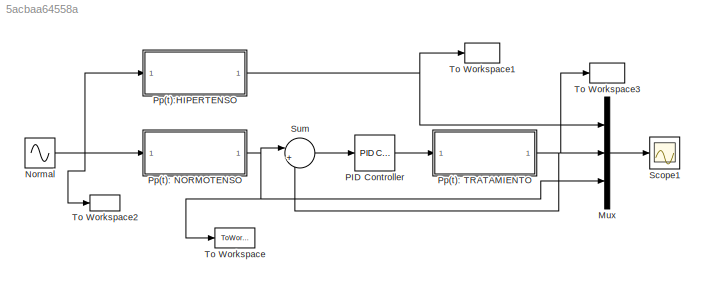
MODEL slx_5acbaa64558a
KIND model
CONFIG AbsTol = auto
CONFIG EnableMultiTasking = off
CONFIG FixedStep = auto
CONFIG MaxStep = 1E-3
CONFIG MinStep = auto
CONFIG RelTol = 1e-3
CONFIG SampleTimeConstraint = Unconstrained
CONFIG SolverName = ode15s
CONFIG StartTime = 0.0
CONFIG StopTime = 10
BLOCK [Mux] Mux
  DisplayOption = bar
  Inputs = 3
BLOCK [Sin] Normal
  Bias = 0.8
  Frequency = (2*pi)*(95/60)
  SampleTime = 0.001
BLOCK [Reference] PID Controller  REF=slpidlib/PID Controller
  LibrarySourceBlock = simulink/Continuous/PID Controller
  SourceBlock = slpidlib/PID Controller
  SourceType = PID 1dof
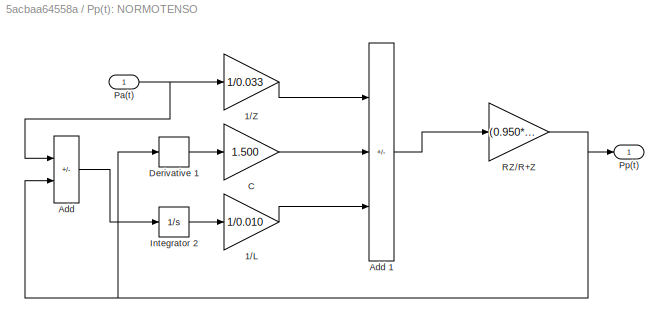
BLOCK [SubSystem] Pp(t): NORMOTENSO
BLOCK [Gain] Pp(t): NORMOTENSO/1//L
  Gain = 1/0.010
BLOCK [Gain] Pp(t): NORMOTENSO/1//Z
  Gain = 1/0.033
BLOCK [Sum] Pp(t): NORMOTENSO/Add
  IconShape = rectangular
  Inputs = +-
BLOCK [Sum] Pp(t): NORMOTENSO/Add 1
  IconShape = rectangular
  Inputs = +-+
BLOCK [Gain] Pp(t): NORMOTENSO/C
  Gain = 1.500
BLOCK [Derivative] Pp(t): NORMOTENSO/Derivative 1
BLOCK [Integrator] Pp(t): NORMOTENSO/Integrator 2
BLOCK [Inport] Pp(t): NORMOTENSO/Pa(t)
BLOCK [Outport] Pp(t): NORMOTENSO/Pp(t)
BLOCK [Gain] Pp(t): NORMOTENSO/RZ//R+Z
  Gain = (0.950*0.033)/(0.950+0.033)
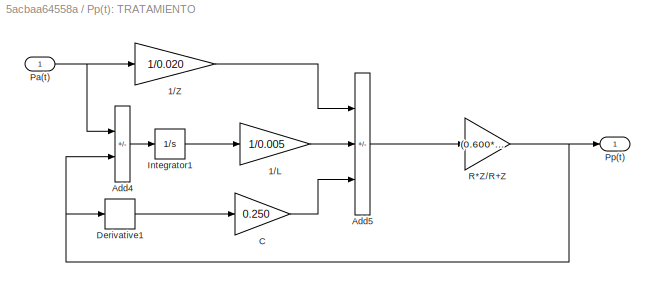
BLOCK [SubSystem] Pp(t): TRATAMIENTO
BLOCK [Gain] Pp(t): TRATAMIENTO/1//L
  Gain = 1/0.005
BLOCK [Gain] Pp(t): TRATAMIENTO/1//Z
  Gain = 1/0.020
BLOCK [Sum] Pp(t): TRATAMIENTO/Add4
  IconShape = rectangular
  Inputs = +-
BLOCK [Sum] Pp(t): TRATAMIENTO/Add5
  IconShape = rectangular
  Inputs = ++-
BLOCK [Gain] Pp(t): TRATAMIENTO/C
  Gain = 0.250
BLOCK [Derivative] Pp(t): TRATAMIENTO/Derivative1
BLOCK [Integrator] Pp(t): TRATAMIENTO/Integrator1
BLOCK [Inport] Pp(t): TRATAMIENTO/Pa(t)
BLOCK [Outport] Pp(t): TRATAMIENTO/Pp(t)
BLOCK [Gain] Pp(t): TRATAMIENTO/R*Z//R+Z
  Gain = (0.600*0.020)/(0.600+0.020)
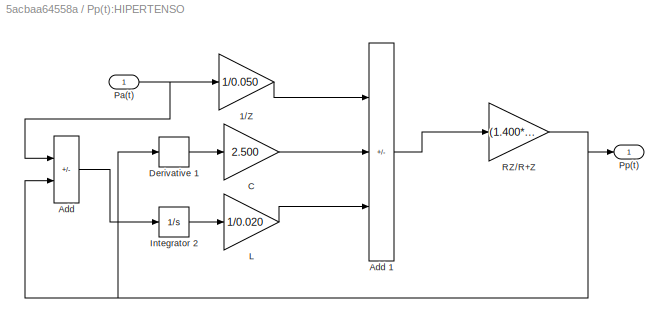
BLOCK [SubSystem] Pp(t):HIPERTENSO 
BLOCK [Gain] Pp(t):HIPERTENSO /1//Z
  Gain = 1/0.050
BLOCK [Sum] Pp(t):HIPERTENSO /Add
  IconShape = rectangular
  Inputs = +-
BLOCK [Sum] Pp(t):HIPERTENSO /Add 1
  IconShape = rectangular
  Inputs = +-+
BLOCK [Gain] Pp(t):HIPERTENSO /C
  Gain = 2.500
BLOCK [Derivative] Pp(t):HIPERTENSO /Derivative 1
BLOCK [Integrator] Pp(t):HIPERTENSO /Integrator 2
BLOCK [Gain] Pp(t):HIPERTENSO /L
  Gain = 1/0.020
BLOCK [Inport] Pp(t):HIPERTENSO /Pa(t)
BLOCK [Outport] Pp(t):HIPERTENSO /Pp(t)
BLOCK [Gain] Pp(t):HIPERTENSO /RZ//R+Z
  Gain = (1.400*0.050)/(1.400+0.050)
BLOCK [Scope] Scope1
  Floating = off
  NumInputPorts = 1
  ScopeSpecificationString = Simulink.scopes.TimeScopeBlockCfg('CurrentConfiguration', extmgr.ConfigurationSet(extmgr.Configuration('Core','General UI',true,'FigureColor',[1 1 1]),extmgr.Configuration('Core','Source UI',true),extmgr.Configuration('Sources','WiredSimulink',true),extmgr.Configuration('Visuals','Time Domain',true,'SerializedDisplays',{struct('MinYLimReal','-2','MaxYLimReal','2','YLabelReal','','MinYLimMag','0.00...<+1800ch>
BLOCK [Sum] Sum
  Inputs = |+-
BLOCK [ToWorkspace] To Workspace
  FixptAsFi = on
  MaxDataPoints = inf
  SampleTime = -1
  VariableName = Ppy
BLOCK [ToWorkspace] To Workspace1
  FixptAsFi = on
  MaxDataPoints = inf
  SampleTime = -1
  VariableName = Ppx
BLOCK [ToWorkspace] To Workspace2
  FixptAsFi = on
  MaxDataPoints = inf
  SampleTime = -1
  SaveFormat = Timeseries
  VariableName = Pa
BLOCK [ToWorkspace] To Workspace3
  FixptAsFi = on
  MaxDataPoints = inf
  SampleTime = -1
  VariableName = Ppz
LINE Mux:1 -> Scope1:1
NET Normal:1 -> Pp(t): NORMOTENSO:1, Pp(t):HIPERTENSO :1, To Workspace2:1
LINE PID Controller:1 -> Pp(t): TRATAMIENTO:1
LINE Pp(t): NORMOTENSO/1//L:1 -> Pp(t): NORMOTENSO/Add 1:3
LINE Pp(t): NORMOTENSO/1//Z:1 -> Pp(t): NORMOTENSO/Add 1:1
LINE Pp(t): NORMOTENSO/Add 1:1 -> Pp(t): NORMOTENSO/RZ//R+Z:1
LINE Pp(t): NORMOTENSO/Add:1 -> Pp(t): NORMOTENSO/Integrator 2:1
LINE Pp(t): NORMOTENSO/C:1 -> Pp(t): NORMOTENSO/Add 1:2
LINE Pp(t): NORMOTENSO/Derivative 1:1 -> Pp(t): NORMOTENSO/C:1
LINE Pp(t): NORMOTENSO/Integrator 2:1 -> Pp(t): NORMOTENSO/1//L:1
NET Pp(t): NORMOTENSO/Pa(t):1 -> Pp(t): NORMOTENSO/1//Z:1, Pp(t): NORMOTENSO/Add:1
NET Pp(t): NORMOTENSO/RZ//R+Z:1 -> Pp(t): NORMOTENSO/Add:2, Pp(t): NORMOTENSO/Derivative 1:1, Pp(t): NORMOTENSO/Pp(t):1
NET Pp(t): NORMOTENSO:1 -> Mux:3, Sum:1, To Workspace:1
LINE Pp(t): TRATAMIENTO/1//L:1 -> Pp(t): TRATAMIENTO/Add5:2
LINE Pp(t): TRATAMIENTO/1//Z:1 -> Pp(t): TRATAMIENTO/Add5:1
LINE Pp(t): TRATAMIENTO/Add4:1 -> Pp(t): TRATAMIENTO/Integrator1:1
LINE Pp(t): TRATAMIENTO/Add5:1 -> Pp(t): TRATAMIENTO/R*Z//R+Z:1
LINE Pp(t): TRATAMIENTO/C:1 -> Pp(t): TRATAMIENTO/Add5:3
LINE Pp(t): TRATAMIENTO/Derivative1:1 -> Pp(t): TRATAMIENTO/C:1
LINE Pp(t): TRATAMIENTO/Integrator1:1 -> Pp(t): TRATAMIENTO/1//L:1
NET Pp(t): TRATAMIENTO/Pa(t):1 -> Pp(t): TRATAMIENTO/1//Z:1, Pp(t): TRATAMIENTO/Add4:1
NET Pp(t): TRATAMIENTO/R*Z//R+Z:1 -> Pp(t): TRATAMIENTO/Add4:2, Pp(t): TRATAMIENTO/Derivative1:1, Pp(t): TRATAMIENTO/Pp(t):1
NET Pp(t): TRATAMIENTO:1 -> Mux:2, Sum:2, To Workspace3:1
LINE Pp(t):HIPERTENSO /1//Z:1 -> Pp(t):HIPERTENSO /Add 1:1
LINE Pp(t):HIPERTENSO /Add 1:1 -> Pp(t):HIPERTENSO /RZ//R+Z:1
LINE Pp(t):HIPERTENSO /Add:1 -> Pp(t):HIPERTENSO /Integrator 2:1
LINE Pp(t):HIPERTENSO /C:1 -> Pp(t):HIPERTENSO /Add 1:2
LINE Pp(t):HIPERTENSO /Derivative 1:1 -> Pp(t):HIPERTENSO /C:1
LINE Pp(t):HIPERTENSO /Integrator 2:1 -> Pp(t):HIPERTENSO /L:1
LINE Pp(t):HIPERTENSO /L:1 -> Pp(t):HIPERTENSO /Add 1:3
NET Pp(t):HIPERTENSO /Pa(t):1 -> Pp(t):HIPERTENSO /1//Z:1, Pp(t):HIPERTENSO /Add:1
NET Pp(t):HIPERTENSO /RZ//R+Z:1 -> Pp(t):HIPERTENSO /Add:2, Pp(t):HIPERTENSO /Derivative 1:1, Pp(t):HIPERTENSO /Pp(t):1
NET Pp(t):HIPERTENSO :1 -> Mux:1, To Workspace1:1
LINE Sum:1 -> PID Controller:1
note: NET lines group one-source signal fan-out (src -> all destinations, sorted); 1:1 wires keep LINE
